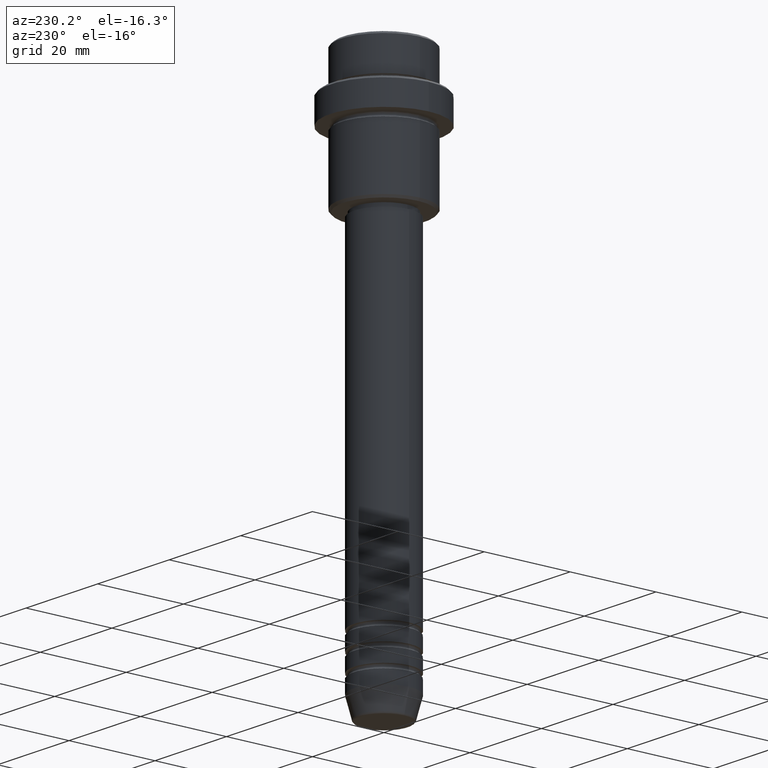
[diagram: clean part render]
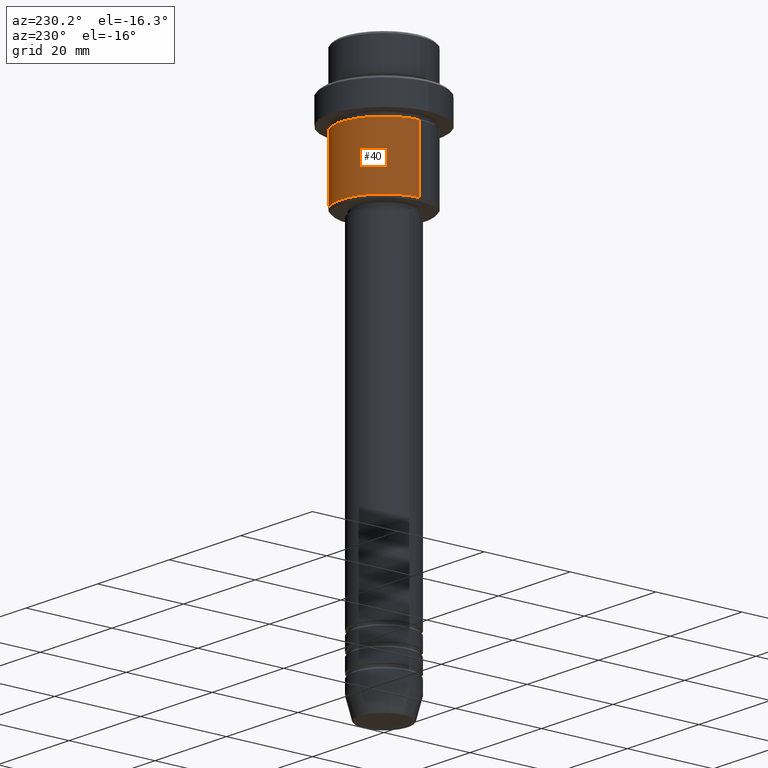
[diagram: same view with one face highlighted and labeled with its STEP entity id]
A machine part, auxiliary view. The second image highlights one B-rep face of the part: STEP entity #40.
In plain terms, the highlighted cylindrical surface (partial cylindrical patch) has radius 10 mm, axis along (-0, -0, 1).
Its self-contained STEP definition (entity closure, byte-faithful):
#40 = ADVANCED_FACE ( 'NONE', ( #341 ), #434, .T. ) ;
#74 = CARTESIAN_POINT ( 'NONE',  ( 0.000000000000000000, 0.000000000000000000, -16.00000000000000000 ) ) ;
#85 = DIRECTION ( 'NONE',  ( -0.000000000000000000, -0.000000000000000000, 1.000000000000000000 ) ) ;
#87 = VECTOR ( 'NONE', #1126, 1000.000000000000000 ) ;
#108 = EDGE_LOOP ( 'NONE', ( #681, #949, #1032, #576 ) ) ;
#120 = AXIS2_PLACEMENT_3D ( 'NONE', #74, #85, #519 ) ;
#145 = CARTESIAN_POINT ( 'NONE',  ( 10.00000000000000000, 0.000000000000000000, -16.00000000000000000 ) ) ;
#173 = EDGE_CURVE ( 'NONE', #1365, #374, #250, .T. ) ;
#174 = LINE ( 'NONE', #287, #763 ) ;
#190 = CARTESIAN_POINT ( 'NONE',  ( -10.00000000000000000, 1.224646799147353256E-15, -30.49999999999996803 ) ) ;
#202 = DIRECTION ( 'NONE',  ( -0.000000000000000000, -0.000000000000000000, 1.000000000000000000 ) ) ;
#247 = DIRECTION ( 'NONE',  ( -0.000000000000000000, -0.000000000000000000, 1.000000000000000000 ) ) ;
#250 = LINE ( 'NONE', #471, #87 ) ;
#287 = CARTESIAN_POINT ( 'NONE',  ( -10.00000000000000000, 1.224646799147353256E-15, 0.000000000000000000 ) ) ;
#290 = CARTESIAN_POINT ( 'NONE',  ( 10.00000000000000000, 0.000000000000000000, -30.49999999999996803 ) ) ;
#341 = FACE_OUTER_BOUND ( 'NONE', #108, .T. ) ;
#366 = AXIS2_PLACEMENT_3D ( 'NONE', #1414, #247, #567 ) ;
#374 = VERTEX_POINT ( 'NONE', #145 ) ;
#434 = CYLINDRICAL_SURFACE ( 'NONE', #1323, 10.00000000000000000 ) ;
#471 = CARTESIAN_POINT ( 'NONE',  ( 10.00000000000000000, 0.000000000000000000, 0.000000000000000000 ) ) ;
#494 = VERTEX_POINT ( 'NONE', #644 ) ;
#519 = DIRECTION ( 'NONE',  ( 1.000000000000000000, 0.000000000000000000, 0.000000000000000000 ) ) ;
#522 = VERTEX_POINT ( 'NONE', #190 ) ;
#567 = DIRECTION ( 'NONE',  ( -1.000000000000000000, 0.000000000000000000, 0.000000000000000000 ) ) ;
#576 = ORIENTED_EDGE ( 'NONE', *, *, #173, .F. ) ;
#630 = EDGE_CURVE ( 'NONE', #1365, #522, #1165, .T. ) ;
#644 = CARTESIAN_POINT ( 'NONE',  ( -10.00000000000000000, 1.224646799147353256E-15, -16.00000000000000000 ) ) ;
#681 = ORIENTED_EDGE ( 'NONE', *, *, #630, .T. ) ;
#763 = VECTOR ( 'NONE', #1374, 1000.000000000000000 ) ;
#901 = EDGE_CURVE ( 'NONE', #374, #494, #1348, .T. ) ;
#949 = ORIENTED_EDGE ( 'NONE', *, *, #967, .T. ) ;
#967 = EDGE_CURVE ( 'NONE', #522, #494, #174, .T. ) ;
#1032 = ORIENTED_EDGE ( 'NONE', *, *, #901, .F. ) ;
#1087 = CARTESIAN_POINT ( 'NONE',  ( 0.000000000000000000, 0.000000000000000000, 0.000000000000000000 ) ) ;
#1126 = DIRECTION ( 'NONE',  ( -0.000000000000000000, -0.000000000000000000, 1.000000000000000000 ) ) ;
#1165 = CIRCLE ( 'NONE', #366, 10.00000000000000000 ) ;
#1307 = DIRECTION ( 'NONE',  ( 1.000000000000000000, 0.000000000000000000, 0.000000000000000000 ) ) ;
#1323 = AXIS2_PLACEMENT_3D ( 'NONE', #1087, #202, #1307 ) ;
#1348 = CIRCLE ( 'NONE', #120, 10.00000000000000000 ) ;
#1365 = VERTEX_POINT ( 'NONE', #290 ) ;
#1374 = DIRECTION ( 'NONE',  ( -0.000000000000000000, -0.000000000000000000, 1.000000000000000000 ) ) ;
#1414 = CARTESIAN_POINT ( 'NONE',  ( 0.000000000000000000, 0.000000000000000000, -30.49999999999996803 ) ) ;